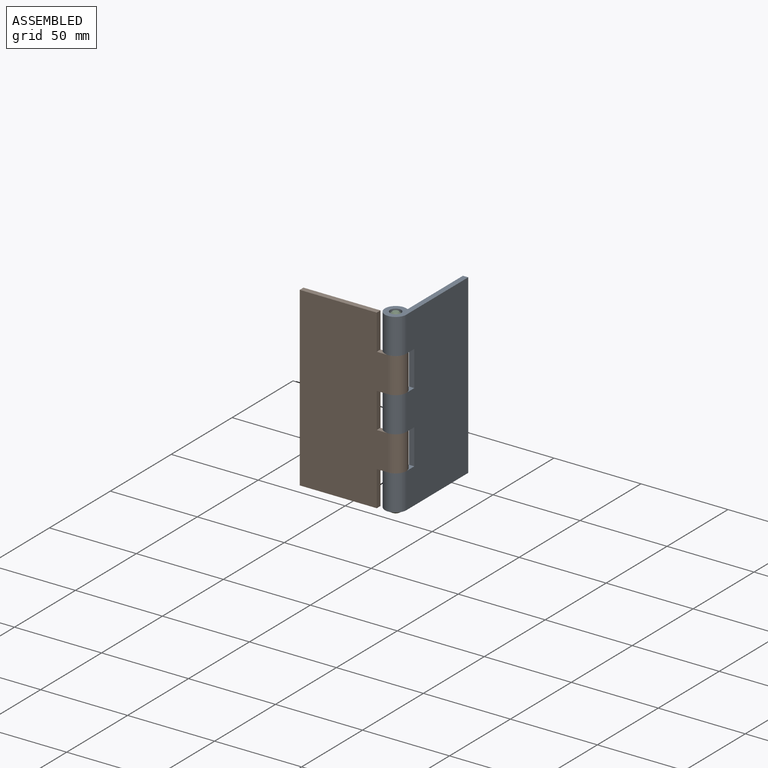
[diagram: assembled view]
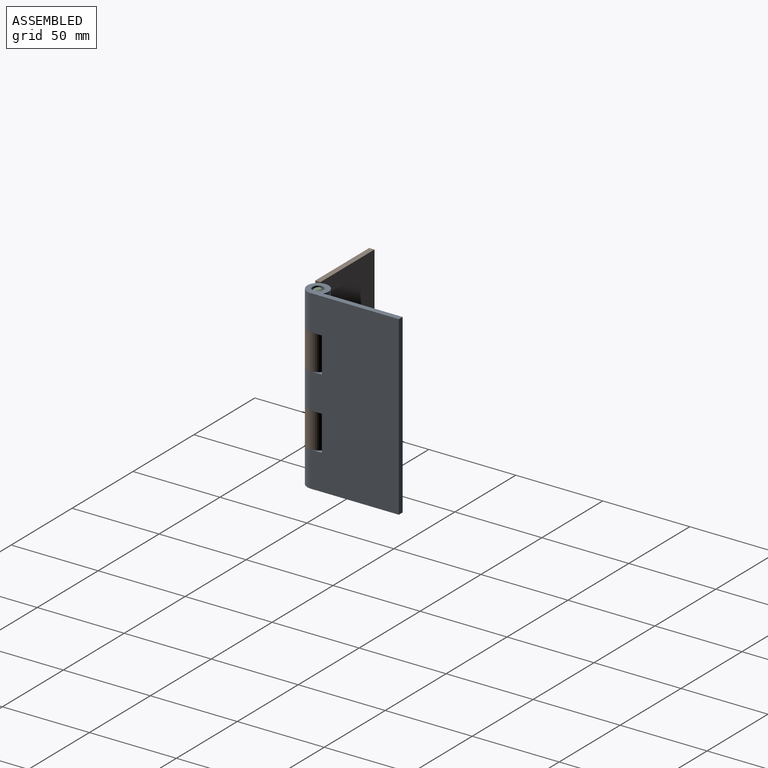
[diagram: assembled view, second angle]
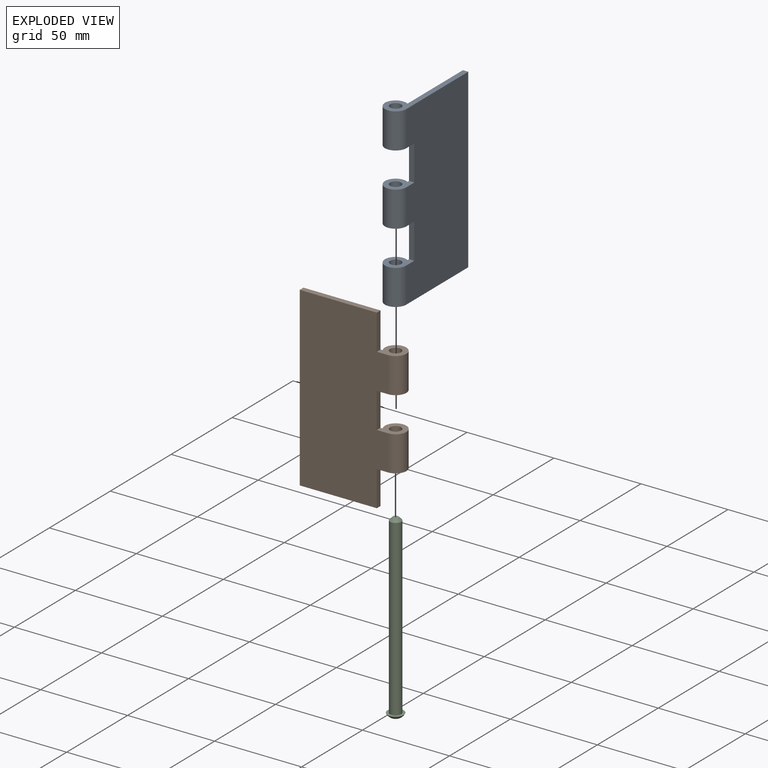
[diagram: exploded view]
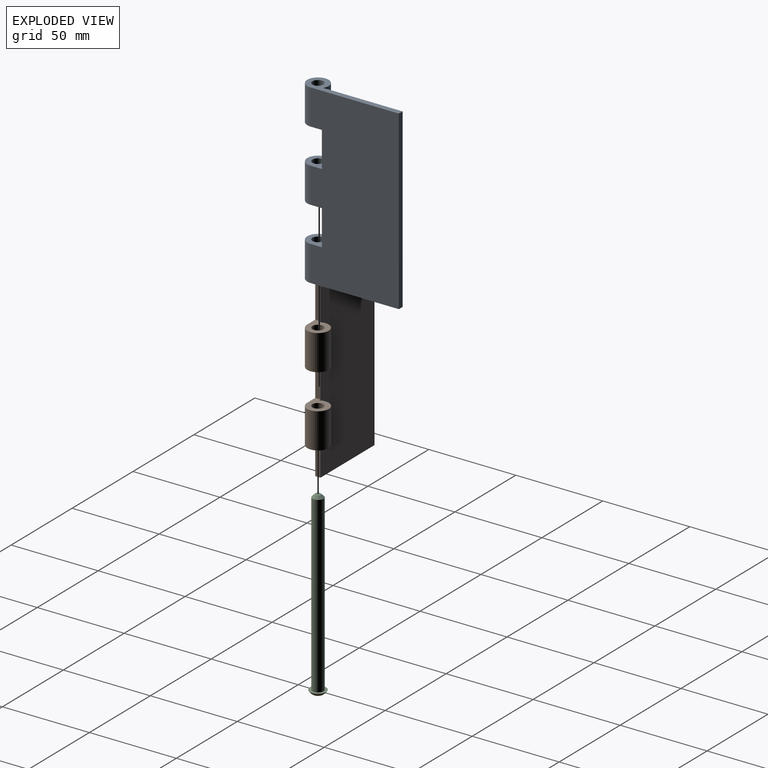
[diagram: exploded view, second angle]
ASSEMBLY  parts=3 mates=4
PART A: 17 faces, bbox 57x12.3x101.6 mm
  f0: cylinder r=6.15mm len=20.32mm, axis (0,0,-1), area 655.2mm2, adj f7,f9,f13,f15
  f1: cylinder r=3.17mm len=20.32mm, axis (0,0,-1), area 405.4mm2, adj f13,f15
  f2: cylinder r=6.15mm len=20.32mm, axis (0,0,-1), area 655.2mm2, adj f5,f7,f9,f12
  f3: cylinder r=3.17mm len=20.32mm, axis (0,0,-1), area 405.4mm2, adj f5,f12
  f4: plane 56.95x12.3mm, normal (0,0,1), area 230.6mm2, adj f6,f7,f8,f9,f10
  f5: plane 56.95x12.3mm, normal (0,0,-1), area 230.6mm2, adj f2,f3,f6,f7,f9
  f6: plane 101.6x3.05mm, normal (1,0,0), area 309.7mm2, adj f4,f5,f7,f9
  f7: plane 101.6x45.49mm, normal (0,1,0), area 4572mm2, adj f0,f2,f4,f5,f6,f8,f11,f12
  f8: cylinder r=6.15mm len=20.32mm, axis (0,0,-1), area 655.2mm2, adj f4,f7,f9,f16
  f9: plane 101.6x50.8mm, normal (0,-1,0), area 4895.8mm2, adj f0,f2,f4,f5,f6,f8,f11,f12
  f10: cylinder r=3.17mm len=20.32mm, axis (0,0,-1), area 405.4mm2, adj f4,f16
  f11: plane 20.32x3.05mm, normal (-1,0,0), area 61.9mm2, adj f7,f9,f12,f13
  f12: plane 12.68x12.3mm, normal (0,0,1), area 95.7mm2, adj f2,f3,f7,f9,f11
  f13: plane 12.68x12.3mm, normal (0,0,-1), area 95.7mm2, adj f0,f1,f7,f9,f11
  f14: plane 20.32x3.05mm, normal (-1,0,0), area 61.9mm2, adj f7,f9,f15,f16
  f15: plane 12.68x12.3mm, normal (0,0,1), area 95.7mm2, adj f0,f1,f7,f9,f14
  f16: plane 12.68x12.3mm, normal (0,0,-1), area 95.7mm2, adj f7,f8,f9,f10,f14
PART B: 16 faces, bbox 57x12.3x101.6 mm
  f0: plane 20.32x3.05mm, normal (1,0,0), area 61.9mm2, adj f3,f5,f8,f13
  f1: plane 20.32x3.05mm, normal (1,0,0), area 61.9mm2, adj f3,f5,f6,f12
  f2: plane 101.6x3.05mm, normal (-1,0,0), area 309.7mm2, adj f3,f5,f6,f7
  f3: plane 101.6x50.8mm, normal (0,-1,0), area 4763.1mm2, adj f0,f1,f2,f4,f6,f7,f8,f9
  f4: plane 20.32x3.05mm, normal (1,0,0), area 61.9mm2, adj f3,f5,f7,f9
  f5: plane 101.6x45.49mm, normal (0,1,0), area 4547.2mm2, adj f0,f1,f2,f4,f6,f7,f8,f9
  f6: plane 44.27x3.05mm, normal (0,0,1), area 134.9mm2, adj f1,f2,f3,f5
  f7: plane 44.27x3.05mm, normal (0,0,-1), area 134.9mm2, adj f2,f3,f4,f5
  f8: plane 12.68x12.3mm, normal (0,0,1), area 95.7mm2, adj f0,f3,f5,f10,f11
  f9: plane 12.68x12.3mm, normal (0,0,-1), area 95.7mm2, adj f3,f4,f5,f10,f11
  f10: cylinder r=6.15mm len=20.32mm, axis (0,0,-1), area 655.2mm2, adj f3,f5,f8,f9
  f11: cylinder r=3.17mm len=20.32mm, axis (0,0,-1), area 405.4mm2, adj f8,f9
  f12: plane 12.68x12.3mm, normal (0,0,1), area 95.7mm2, adj f1,f3,f5,f14,f15
  f13: plane 12.68x12.3mm, normal (0,0,-1), area 95.7mm2, adj f0,f3,f5,f14,f15
  f14: cylinder r=6.15mm len=20.32mm, axis (0,0,-1), area 655.2mm2, adj f3,f5,f12,f13
  f15: cylinder r=3.17mm len=20.32mm, axis (0,0,-1), area 405.4mm2, adj f12,f13
PART C: 5 faces, bbox 9.3x9.3x104.3 mm
  f0: sphere r=5.34mm, area 92mm2, adj f2
  f1: cylinder r=3.17mm len=100.01mm, axis (0,0,-1), area 1995.2mm2, adj f2,f4
  f2: plane 9.33x9.33mm, normal (0,0,1), area 36.6mm2, adj f0,f1
  f3: plane 3.18x3.18mm, normal (0,0,1), area 7.9mm2, adj f4
  f4: cone r=1.59mm half-angle=45deg, axis (0,0,-1), area 33.6mm2, adj f1,f3
PLACE A rot(axis=(0,0,1),90deg) t=(57.45,16.6,35.84)mm
PLACE B t=(57.45,16.6,35.84)mm fixed
PLACE C t=(57.45,16.6,35.84)mm
MATE planar B.f6 <-> C.f1  axis (0,0,1) through (28.78,11.97,86.64)mm
MATE cylindrical B.f10 <-> C.f1  axis (0,0,-1) through (57.45,16.6,56.16)mm
MATE planar B.f6 <-> A.f4  axis (0,0,1) through (28.78,11.97,86.64)mm
MATE cylindrical C.f1 <-> A.f0  axis (0,0,-1) through (57.45,16.6,35.05)mm
